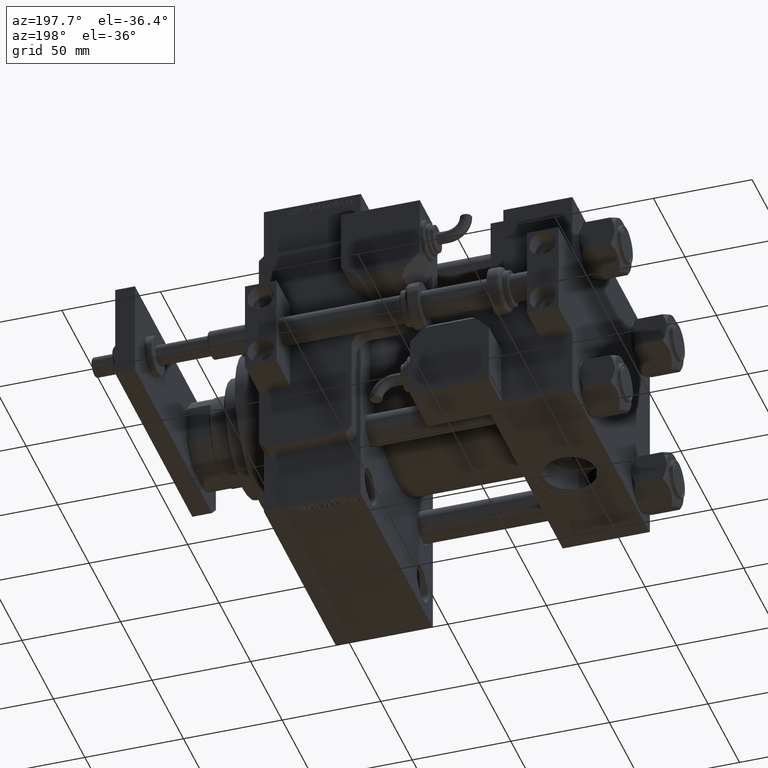
[diagram: clean part render]
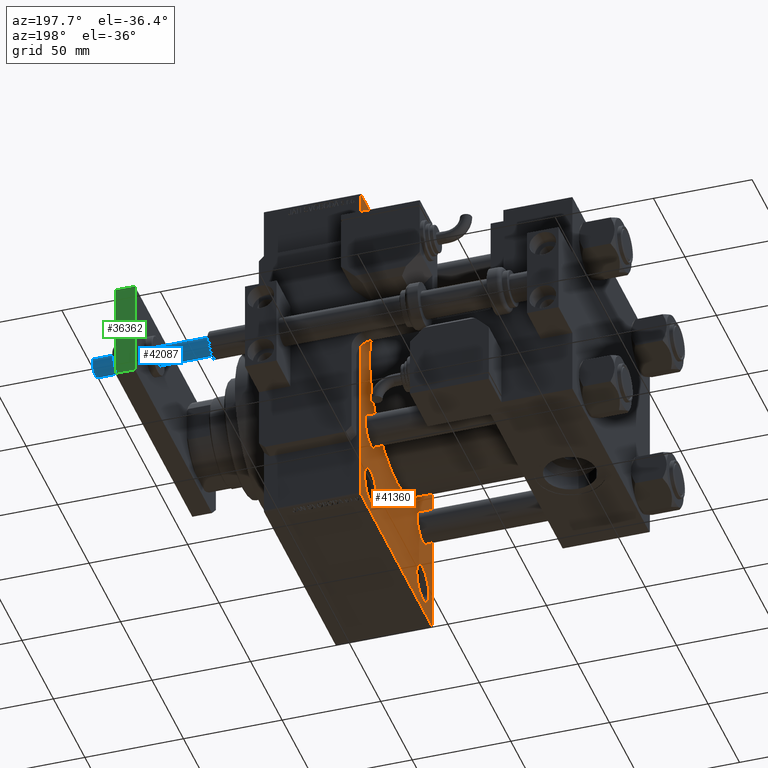
[diagram: same view with three faces highlighted in distinct colors, each labeled with its STEP entity id]
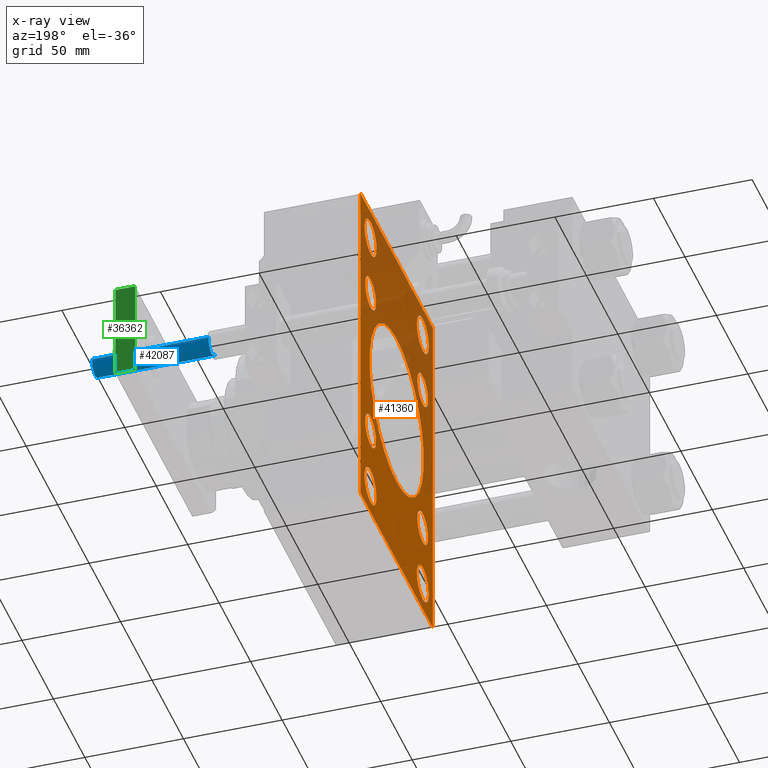
[diagram: x-ray of the same camera — body ghosted, the three highlighted faces saturated]
A machine part, auxiliary view with three faces highlighted in distinct colors.
The next image is the same camera in x-ray (body ghosted, the three faces saturated) — at least one of them is partly hidden behind the body in this view.
Their STEP definitions:

[orange] entity #41360 — the highlighted planar face has unit normal (-1, 0, 0).
#24 = AXIS2_PLACEMENT_3D ( 'NONE', #4604, #52869, #53155 ) ;
#908 = CARTESIAN_POINT ( 'NONE',  ( 110.0000000000000000, -56.99999999999997158, -90.00000000000000000 ) ) ;
#946 = CARTESIAN_POINT ( 'NONE',  ( 110.0000000000000000, -73.49999999999995737, 73.49999999999995737 ) ) ;
#1258 = CARTESIAN_POINT ( 'NONE',  ( 110.0000000000000000, -41.50000000000000711, 64.99999999999997158 ) ) ;
#1518 = CARTESIAN_POINT ( 'NONE',  ( 110.0000000000000000, -41.50000000000000711, -84.00000000000001421 ) ) ;
#1903 = EDGE_LOOP ( 'NONE', ( #10445, #7690 ) ) ;
#2014 = VECTOR ( 'NONE', #44483, 1000.000000000000114 ) ;
#2229 = DIRECTION ( 'NONE',  ( 0.000000000000000000, 0.000000000000000000, 1.000000000000000000 ) ) ;
#2548 = VERTEX_POINT ( 'NONE', #29134 ) ;
#2644 = DIRECTION ( 'NONE',  ( 1.000000000000000000, 0.000000000000000000, 0.000000000000000000 ) ) ;
#2803 = CIRCLE ( 'NONE', #5488, 9.500000000000035527 ) ;
#2909 = CIRCLE ( 'NONE', #16380, 8.500000000000007105 ) ;
#2964 = EDGE_CURVE ( 'NONE', #7854, #15627, #30722, .T. ) ;
#2978 = DIRECTION ( 'NONE',  ( 0.000000000000000000, 0.000000000000000000, 1.000000000000000000 ) ) ;
#3261 = CARTESIAN_POINT ( 'NONE',  ( 110.0000000000000000, -57.50000000000000000, 90.00000000000000000 ) ) ;
#3492 = DIRECTION ( 'NONE',  ( 0.000000000000000000, 0.000000000000000000, 1.000000000000000000 ) ) ;
#3545 = ORIENTED_EDGE ( 'NONE', *, *, #43561, .T. ) ;
#3781 = FACE_BOUND ( 'NONE', #1903, .T. ) ;
#3886 = EDGE_CURVE ( 'NONE', #47465, #49933, #48435, .T. ) ;
#3922 = DIRECTION ( 'NONE',  ( 0.000000000000000000, 0.000000000000000000, 1.000000000000000000 ) ) ;
#4029 = CARTESIAN_POINT ( 'NONE',  ( 110.0000000000000000, -2.602085213965210642E-15, 43.00000000000000000 ) ) ;
#4049 = FACE_OUTER_BOUND ( 'NONE', #35954, .T. ) ;
#4082 = VERTEX_POINT ( 'NONE', #11601 ) ;
#4308 = FACE_BOUND ( 'NONE', #4437, .T. ) ;
#4367 = CARTESIAN_POINT ( 'NONE',  ( 110.0000000000000000, 41.49999999999999289, -84.00000000000001421 ) ) ;
#4401 = CARTESIAN_POINT ( 'NONE',  ( 110.0000000000000000, -41.34999999999998721, -41.35000000000000142 ) ) ;
#4437 = EDGE_LOOP ( 'NONE', ( #37142, #31822 ) ) ;
#4604 = CARTESIAN_POINT ( 'NONE',  ( 110.0000000000000000, -41.34999999999998721, -41.35000000000000142 ) ) ;
#4639 = DIRECTION ( 'NONE',  ( 1.000000000000000000, 0.000000000000000000, 0.000000000000000000 ) ) ;
#4775 = ORIENTED_EDGE ( 'NONE', *, *, #10641, .T. ) ;
#4789 = DIRECTION ( 'NONE',  ( 0.000000000000000000, 0.000000000000000000, 1.000000000000000000 ) ) ;
#5309 = CIRCLE ( 'NONE', #25015, 8.500000000000007105 ) ;
#5385 = DIRECTION ( 'NONE',  ( 0.000000000000000000, 0.000000000000000000, -1.000000000000000000 ) ) ;
#5488 = AXIS2_PLACEMENT_3D ( 'NONE', #8127, #12077, #3922 ) ;
#5554 = CIRCLE ( 'NONE', #46749, 8.500000000000007105 ) ;
#6044 = CARTESIAN_POINT ( 'NONE',  ( 110.0000000000000000, -41.34999999999998721, -32.84999999999999432 ) ) ;
#6108 = VERTEX_POINT ( 'NONE', #27811 ) ;
#6252 = EDGE_CURVE ( 'NONE', #17689, #51902, #2803, .T. ) ;
#6821 = ORIENTED_EDGE ( 'NONE', *, *, #11919, .T. ) ;
#6834 = DIRECTION ( 'NONE',  ( 1.000000000000000000, 0.000000000000000000, 0.000000000000000000 ) ) ;
#7137 = DIRECTION ( 'NONE',  ( 0.000000000000000000, 0.000000000000000000, -1.000000000000000000 ) ) ;
#7234 = EDGE_LOOP ( 'NONE', ( #4775, #16912 ) ) ;
#7322 = EDGE_LOOP ( 'NONE', ( #15139, #6821 ) ) ;
#7380 = DIRECTION ( 'NONE',  ( 0.000000000000000000, -1.000000000000000000, 0.000000000000000000 ) ) ;
#7388 = CIRCLE ( 'NONE', #19941, 8.500000000000007105 ) ;
#7588 = CARTESIAN_POINT ( 'NONE',  ( 110.0000000000000000, -41.50000000000000711, -74.49999999999998579 ) ) ;
#7690 = ORIENTED_EDGE ( 'NONE', *, *, #14749, .T. ) ;
#7715 = CARTESIAN_POINT ( 'NONE',  ( 110.0000000000000000, 41.34999999999999432, 41.34999999999999432 ) ) ;
#7854 = VERTEX_POINT ( 'NONE', #23266 ) ;
#7866 = CARTESIAN_POINT ( 'NONE',  ( 110.0000000000000000, -41.50000000000000711, -64.99999999999994316 ) ) ;
#8127 = CARTESIAN_POINT ( 'NONE',  ( 110.0000000000000000, 41.49999999999999289, -74.49999999999998579 ) ) ;
#8264 = FACE_BOUND ( 'NONE', #7322, .T. ) ;
#8486 = ORIENTED_EDGE ( 'NONE', *, *, #23583, .T. ) ;
#8503 = AXIS2_PLACEMENT_3D ( 'NONE', #44039, #39851, #13180 ) ;
#8583 = ORIENTED_EDGE ( 'NONE', *, *, #20702, .T. ) ;
#9580 = VERTEX_POINT ( 'NONE', #36209 ) ;
#9593 = CARTESIAN_POINT ( 'NONE',  ( 110.0000000000000000, 57.50000000000000000, -89.49999999999988631 ) ) ;
#9612 = CARTESIAN_POINT ( 'NONE',  ( 110.0000000000000000, -41.34999999999998721, 32.84999999999999432 ) ) ;
#9744 = CARTESIAN_POINT ( 'NONE',  ( 110.0000000000000000, 41.34999999999999432, 49.85000000000000853 ) ) ;
#10126 = EDGE_LOOP ( 'NONE', ( #11028, #24789 ) ) ;
#10172 = AXIS2_PLACEMENT_3D ( 'NONE', #33684, #42347, #55266 ) ;
#10272 = CARTESIAN_POINT ( 'NONE',  ( 110.0000000000000000, 73.49999999999995737, -73.49999999999995737 ) ) ;
#10445 = ORIENTED_EDGE ( 'NONE', *, *, #43173, .T. ) ;
#10522 = LINE ( 'NONE', #35536, #21680 ) ;
#10524 = AXIS2_PLACEMENT_3D ( 'NONE', #45146, #23284, #2229 ) ;
#10641 = EDGE_CURVE ( 'NONE', #18291, #13365, #12412, .T. ) ;
#10854 = LINE ( 'NONE', #3261, #25336 ) ;
#10990 = CARTESIAN_POINT ( 'NONE',  ( 110.0000000000000000, 41.49999999999999289, -64.99999999999994316 ) ) ;
#11028 = ORIENTED_EDGE ( 'NONE', *, *, #49807, .T. ) ;
#11134 = DIRECTION ( 'NONE',  ( 1.000000000000000000, 0.000000000000000000, 0.000000000000000000 ) ) ;
#11178 = EDGE_CURVE ( 'NONE', #30285, #51873, #18699, .T. ) ;
#11343 = CARTESIAN_POINT ( 'NONE',  ( 110.0000000000000000, -41.34999999999998721, -49.85000000000001563 ) ) ;
#11432 = ORIENTED_EDGE ( 'NONE', *, *, #17657, .T. ) ;
#11601 = CARTESIAN_POINT ( 'NONE',  ( 110.0000000000000000, 56.99999999999997158, 90.00000000000000000 ) ) ;
#11919 = EDGE_CURVE ( 'NONE', #19429, #48834, #29365, .T. ) ;
#12077 = DIRECTION ( 'NONE',  ( 1.000000000000000000, 0.000000000000000000, 0.000000000000000000 ) ) ;
#12117 = CIRCLE ( 'NONE', #42545, 9.500000000000035527 ) ;
#12193 = AXIS2_PLACEMENT_3D ( 'NONE', #7588, #33420, #25241 ) ;
#12256 = VERTEX_POINT ( 'NONE', #32072 ) ;
#12412 = CIRCLE ( 'NONE', #39295, 8.500000000000007105 ) ;
#12476 = FACE_BOUND ( 'NONE', #44136, .T. ) ;
#12754 = PLANE ( 'NONE',  #42230 ) ;
#13028 = CARTESIAN_POINT ( 'NONE',  ( 110.0000000000000000, 0.000000000000000000, 0.000000000000000000 ) ) ;
#13095 = CARTESIAN_POINT ( 'NONE',  ( 110.0000000000000000, 41.34999999999999432, 32.84999999999998721 ) ) ;
#13180 = DIRECTION ( 'NONE',  ( 0.000000000000000000, 0.000000000000000000, 1.000000000000000000 ) ) ;
#13365 = VERTEX_POINT ( 'NONE', #13095 ) ;
#13954 = DIRECTION ( 'NONE',  ( 1.000000000000000000, 0.000000000000000000, 0.000000000000000000 ) ) ;
#14201 = CARTESIAN_POINT ( 'NONE',  ( 110.0000000000000000, -57.50000000000000000, -89.49999999999991473 ) ) ;
#14703 = DIRECTION ( 'NONE',  ( 0.000000000000000000, 0.000000000000000000, 1.000000000000000000 ) ) ;
#14749 = EDGE_CURVE ( 'NONE', #21348, #2548, #5309, .T. ) ;
#15139 = ORIENTED_EDGE ( 'NONE', *, *, #26587, .T. ) ;
#15341 = DIRECTION ( 'NONE',  ( 0.000000000000000000, 0.000000000000000000, 1.000000000000000000 ) ) ;
#15525 = VERTEX_POINT ( 'NONE', #48806 ) ;
#15627 = VERTEX_POINT ( 'NONE', #37024 ) ;
#16380 = AXIS2_PLACEMENT_3D ( 'NONE', #52614, #42328, #33664 ) ;
#16456 = CARTESIAN_POINT ( 'NONE',  ( 110.0000000000000000, 41.34999999999999432, 41.34999999999999432 ) ) ;
#16912 = ORIENTED_EDGE ( 'NONE', *, *, #26498, .T. ) ;
#17657 = EDGE_CURVE ( 'NONE', #12256, #27954, #52808, .T. ) ;
#17689 = VERTEX_POINT ( 'NONE', #10990 ) ;
#18067 = CARTESIAN_POINT ( 'NONE',  ( 110.0000000000000000, -2.602085213965210642E-15, 0.000000000000000000 ) ) ;
#18083 = VECTOR ( 'NONE', #52018, 1000.000000000000114 ) ;
#18291 = VERTEX_POINT ( 'NONE', #9744 ) ;
#18484 = CIRCLE ( 'NONE', #12193, 9.500000000000035527 ) ;
#18699 = CIRCLE ( 'NONE', #10524, 9.500000000000035527 ) ;
#18899 = VECTOR ( 'NONE', #5385, 1000.000000000000000 ) ;
#18979 = CARTESIAN_POINT ( 'NONE',  ( 110.0000000000000000, 41.49999999999999289, 84.00000000000004263 ) ) ;
#19147 = LINE ( 'NONE', #49157, #48807 ) ;
#19325 = CIRCLE ( 'NONE', #40834, 9.500000000000035527 ) ;
#19429 = VERTEX_POINT ( 'NONE', #50522 ) ;
#19941 = AXIS2_PLACEMENT_3D ( 'NONE', #47426, #43235, #4789 ) ;
#20702 = EDGE_CURVE ( 'NONE', #49933, #47465, #5554, .T. ) ;
#20906 = FACE_BOUND ( 'NONE', #7234, .T. ) ;
#21007 = AXIS2_PLACEMENT_3D ( 'NONE', #33587, #50114, #2978 ) ;
#21023 = ORIENTED_EDGE ( 'NONE', *, *, #42191, .T. ) ;
#21333 = DIRECTION ( 'NONE',  ( 0.000000000000000000, 0.000000000000000000, 1.000000000000000000 ) ) ;
#21348 = VERTEX_POINT ( 'NONE', #9612 ) ;
#21478 = ORIENTED_EDGE ( 'NONE', *, *, #25685, .T. ) ;
#21563 = EDGE_CURVE ( 'NONE', #15525, #33203, #28921, .T. ) ;
#21680 = VECTOR ( 'NONE', #52623, 1000.000000000000000 ) ;
#21799 = CIRCLE ( 'NONE', #27184, 8.500000000000007105 ) ;
#21838 = EDGE_CURVE ( 'NONE', #33203, #15525, #2909, .T. ) ;
#22168 = DIRECTION ( 'NONE',  ( 1.000000000000000000, 0.000000000000000000, 0.000000000000000000 ) ) ;
#22532 = ORIENTED_EDGE ( 'NONE', *, *, #21563, .T. ) ;
#22533 = EDGE_CURVE ( 'NONE', #7854, #41113, #10854, .T. ) ;
#22847 = LINE ( 'NONE', #26207, #18083 ) ;
#22903 = VERTEX_POINT ( 'NONE', #908 ) ;
#23266 = CARTESIAN_POINT ( 'NONE',  ( 110.0000000000000000, -57.50000000000000000, 89.49999999999994316 ) ) ;
#23284 = DIRECTION ( 'NONE',  ( 1.000000000000000000, 0.000000000000000000, 0.000000000000000000 ) ) ;
#23583 = EDGE_CURVE ( 'NONE', #6108, #22903, #10522, .T. ) ;
#23698 = CIRCLE ( 'NONE', #21007, 9.500000000000035527 ) ;
#24789 = ORIENTED_EDGE ( 'NONE', *, *, #53646, .T. ) ;
#24797 = ORIENTED_EDGE ( 'NONE', *, *, #47549, .T. ) ;
#24823 = DIRECTION ( 'NONE',  ( 1.000000000000000000, 0.000000000000000000, 0.000000000000000000 ) ) ;
#25015 = AXIS2_PLACEMENT_3D ( 'NONE', #45263, #6834, #14703 ) ;
#25241 = DIRECTION ( 'NONE',  ( 0.000000000000000000, 0.000000000000000000, 1.000000000000000000 ) ) ;
#25318 = LINE ( 'NONE', #32938, #52529 ) ;
#25336 = VECTOR ( 'NONE', #30191, 1000.000000000000000 ) ;
#25378 = FACE_BOUND ( 'NONE', #47492, .T. ) ;
#25685 = EDGE_CURVE ( 'NONE', #41919, #9580, #54948, .T. ) ;
#26207 = CARTESIAN_POINT ( 'NONE',  ( 110.0000000000000000, 73.49999999999997158, 73.49999999999997158 ) ) ;
#26498 = EDGE_CURVE ( 'NONE', #13365, #18291, #21799, .T. ) ;
#26587 = EDGE_CURVE ( 'NONE', #48834, #19429, #29001, .T. ) ;
#26602 = ORIENTED_EDGE ( 'NONE', *, *, #3886, .T. ) ;
#27184 = AXIS2_PLACEMENT_3D ( 'NONE', #7715, #24823, #3492 ) ;
#27658 = ORIENTED_EDGE ( 'NONE', *, *, #47170, .T. ) ;
#27811 = CARTESIAN_POINT ( 'NONE',  ( 110.0000000000000000, 56.99999999999994316, -90.00000000000000000 ) ) ;
#27954 = VERTEX_POINT ( 'NONE', #9593 ) ;
#28921 = CIRCLE ( 'NONE', #37900, 8.500000000000007105 ) ;
#29001 = CIRCLE ( 'NONE', #43305, 43.00000000000000000 ) ;
#29110 = DIRECTION ( 'NONE',  ( 0.000000000000000000, 0.000000000000000000, 1.000000000000000000 ) ) ;
#29134 = CARTESIAN_POINT ( 'NONE',  ( 110.0000000000000000, -41.34999999999998721, 49.85000000000001563 ) ) ;
#29330 = FACE_BOUND ( 'NONE', #48908, .T. ) ;
#29365 = CIRCLE ( 'NONE', #43681, 43.00000000000000000 ) ;
#29718 = EDGE_CURVE ( 'NONE', #51873, #30285, #30959, .T. ) ;
#29884 = DIRECTION ( 'NONE',  ( -0.000000000000000000, 0.000000000000000000, 1.000000000000000000 ) ) ;
#30010 = LINE ( 'NONE', #10272, #2014 ) ;
#30094 = ORIENTED_EDGE ( 'NONE', *, *, #2964, .T. ) ;
#30191 = DIRECTION ( 'NONE',  ( 0.000000000000000000, 0.000000000000000000, -1.000000000000000000 ) ) ;
#30285 = VERTEX_POINT ( 'NONE', #1258 ) ;
#30722 = LINE ( 'NONE', #946, #49304 ) ;
#30959 = CIRCLE ( 'NONE', #8503, 9.500000000000035527 ) ;
#31760 = CARTESIAN_POINT ( 'NONE',  ( 110.0000000000000000, 41.49999999999999289, 74.50000000000001421 ) ) ;
#31822 = ORIENTED_EDGE ( 'NONE', *, *, #11178, .T. ) ;
#32072 = CARTESIAN_POINT ( 'NONE',  ( 110.0000000000000000, 57.50000000000000000, 89.49999999999997158 ) ) ;
#32938 = CARTESIAN_POINT ( 'NONE',  ( 110.0000000000000000, 57.50000000000000000, 90.00000000000000000 ) ) ;
#33203 = VERTEX_POINT ( 'NONE', #49850 ) ;
#33346 = DIRECTION ( 'NONE',  ( 0.000000000000000000, 0.000000000000000000, 1.000000000000000000 ) ) ;
#33420 = DIRECTION ( 'NONE',  ( 1.000000000000000000, 0.000000000000000000, 0.000000000000000000 ) ) ;
#33533 = CARTESIAN_POINT ( 'NONE',  ( 110.0000000000000000, -2.602085213965210642E-15, 0.000000000000000000 ) ) ;
#33587 = CARTESIAN_POINT ( 'NONE',  ( 110.0000000000000000, 41.49999999999999289, -74.49999999999998579 ) ) ;
#33664 = DIRECTION ( 'NONE',  ( 0.000000000000000000, 0.000000000000000000, 1.000000000000000000 ) ) ;
#33684 = CARTESIAN_POINT ( 'NONE',  ( 110.0000000000000000, 41.49999999999999289, 74.50000000000001421 ) ) ;
#33873 = CARTESIAN_POINT ( 'NONE',  ( 110.0000000000000000, -41.50000000000000711, -74.49999999999998579 ) ) ;
#35536 = CARTESIAN_POINT ( 'NONE',  ( 110.0000000000000000, 57.50000000000000000, -90.00000000000000000 ) ) ;
#35954 = EDGE_LOOP ( 'NONE', ( #8486, #24797, #44942, #30094, #44142, #21023, #11432, #3545 ) ) ;
#36042 = ORIENTED_EDGE ( 'NONE', *, *, #51419, .T. ) ;
#36209 = CARTESIAN_POINT ( 'NONE',  ( 110.0000000000000000, 41.49999999999999289, 64.99999999999997158 ) ) ;
#36276 = DIRECTION ( 'NONE',  ( 0.000000000000000000, -0.7071067811865474617, 0.7071067811865474617 ) ) ;
#37024 = CARTESIAN_POINT ( 'NONE',  ( 110.0000000000000000, -56.99999999999994316, 90.00000000000000000 ) ) ;
#37142 = ORIENTED_EDGE ( 'NONE', *, *, #29718, .T. ) ;
#37532 = CARTESIAN_POINT ( 'NONE',  ( 110.0000000000000000, -41.50000000000000711, 84.00000000000004263 ) ) ;
#37900 = AXIS2_PLACEMENT_3D ( 'NONE', #51905, #22168, #21333 ) ;
#38394 = ORIENTED_EDGE ( 'NONE', *, *, #21838, .T. ) ;
#38569 = DIRECTION ( 'NONE',  ( -0.000000000000000000, 0.7071067811865474617, 0.7071067811865474617 ) ) ;
#39295 = AXIS2_PLACEMENT_3D ( 'NONE', #16456, #11134, #15341 ) ;
#39785 = DIRECTION ( 'NONE',  ( 0.000000000000000000, 0.000000000000000000, 1.000000000000000000 ) ) ;
#39851 = DIRECTION ( 'NONE',  ( 1.000000000000000000, 0.000000000000000000, 0.000000000000000000 ) ) ;
#40220 = DIRECTION ( 'NONE',  ( 1.000000000000000000, 0.000000000000000000, 0.000000000000000000 ) ) ;
#40834 = AXIS2_PLACEMENT_3D ( 'NONE', #33873, #4639, #29110 ) ;
#41113 = VERTEX_POINT ( 'NONE', #14201 ) ;
#41360 = ADVANCED_FACE ( 'NONE', ( #4308, #55145, #29330, #42222, #3781, #20906, #12476, #25378, #8264, #4049 ), #12754, .T. ) ;
#41749 = DIRECTION ( 'NONE',  ( 1.000000000000000000, 0.000000000000000000, 0.000000000000000000 ) ) ;
#41919 = VERTEX_POINT ( 'NONE', #18979 ) ;
#42191 = EDGE_CURVE ( 'NONE', #4082, #12256, #22847, .T. ) ;
#42222 = FACE_BOUND ( 'NONE', #45727, .T. ) ;
#42230 = AXIS2_PLACEMENT_3D ( 'NONE', #13028, #47233, #29884 ) ;
#42328 = DIRECTION ( 'NONE',  ( 1.000000000000000000, 0.000000000000000000, 0.000000000000000000 ) ) ;
#42347 = DIRECTION ( 'NONE',  ( 1.000000000000000000, 0.000000000000000000, 0.000000000000000000 ) ) ;
#42545 = AXIS2_PLACEMENT_3D ( 'NONE', #31760, #41749, #33346 ) ;
#42792 = VERTEX_POINT ( 'NONE', #7866 ) ;
#43173 = EDGE_CURVE ( 'NONE', #2548, #21348, #7388, .T. ) ;
#43235 = DIRECTION ( 'NONE',  ( 1.000000000000000000, 0.000000000000000000, 0.000000000000000000 ) ) ;
#43305 = AXIS2_PLACEMENT_3D ( 'NONE', #18067, #40220, #51730 ) ;
#43561 = EDGE_CURVE ( 'NONE', #27954, #6108, #30010, .T. ) ;
#43681 = AXIS2_PLACEMENT_3D ( 'NONE', #33533, #2644, #7137 ) ;
#44039 = CARTESIAN_POINT ( 'NONE',  ( 110.0000000000000000, -41.50000000000000711, 74.50000000000001421 ) ) ;
#44136 = EDGE_LOOP ( 'NONE', ( #38394, #22532 ) ) ;
#44142 = ORIENTED_EDGE ( 'NONE', *, *, #53468, .F. ) ;
#44483 = DIRECTION ( 'NONE',  ( -0.000000000000000000, -0.7071067811865474617, -0.7071067811865474617 ) ) ;
#44650 = CARTESIAN_POINT ( 'NONE',  ( 110.0000000000000000, 57.50000000000000000, 90.00000000000000000 ) ) ;
#44942 = ORIENTED_EDGE ( 'NONE', *, *, #22533, .F. ) ;
#45146 = CARTESIAN_POINT ( 'NONE',  ( 110.0000000000000000, -41.50000000000000711, 74.50000000000001421 ) ) ;
#45263 = CARTESIAN_POINT ( 'NONE',  ( 110.0000000000000000, -41.34999999999998721, 41.35000000000000142 ) ) ;
#45727 = EDGE_LOOP ( 'NONE', ( #21478, #36042 ) ) ;
#46404 = VERTEX_POINT ( 'NONE', #1518 ) ;
#46749 = AXIS2_PLACEMENT_3D ( 'NONE', #4401, #13954, #39785 ) ;
#47170 = EDGE_CURVE ( 'NONE', #51902, #17689, #23698, .T. ) ;
#47233 = DIRECTION ( 'NONE',  ( -1.000000000000000000, 0.000000000000000000, -0.000000000000000000 ) ) ;
#47426 = CARTESIAN_POINT ( 'NONE',  ( 110.0000000000000000, -41.34999999999998721, 41.35000000000000142 ) ) ;
#47465 = VERTEX_POINT ( 'NONE', #11343 ) ;
#47492 = EDGE_LOOP ( 'NONE', ( #8583, #26602 ) ) ;
#47549 = EDGE_CURVE ( 'NONE', #22903, #41113, #19147, .T. ) ;
#48435 = CIRCLE ( 'NONE', #24, 8.500000000000007105 ) ;
#48806 = CARTESIAN_POINT ( 'NONE',  ( 110.0000000000000000, 41.34999999999999432, -49.85000000000000853 ) ) ;
#48807 = VECTOR ( 'NONE', #36276, 1000.000000000000114 ) ;
#48834 = VERTEX_POINT ( 'NONE', #4029 ) ;
#48908 = EDGE_LOOP ( 'NONE', ( #53693, #27658 ) ) ;
#49157 = CARTESIAN_POINT ( 'NONE',  ( 110.0000000000000000, -73.49999999999997158, -73.49999999999997158 ) ) ;
#49304 = VECTOR ( 'NONE', #38569, 1000.000000000000114 ) ;
#49807 = EDGE_CURVE ( 'NONE', #42792, #46404, #19325, .T. ) ;
#49850 = CARTESIAN_POINT ( 'NONE',  ( 110.0000000000000000, 41.34999999999999432, -32.84999999999998721 ) ) ;
#49933 = VERTEX_POINT ( 'NONE', #6044 ) ;
#50114 = DIRECTION ( 'NONE',  ( 1.000000000000000000, 0.000000000000000000, 0.000000000000000000 ) ) ;
#50522 = CARTESIAN_POINT ( 'NONE',  ( 110.0000000000000000, 2.663896022368408223E-15, -43.00000000000000000 ) ) ;
#51419 = EDGE_CURVE ( 'NONE', #9580, #41919, #12117, .T. ) ;
#51730 = DIRECTION ( 'NONE',  ( 0.000000000000000000, 0.000000000000000000, -1.000000000000000000 ) ) ;
#51873 = VERTEX_POINT ( 'NONE', #37532 ) ;
#51902 = VERTEX_POINT ( 'NONE', #4367 ) ;
#51905 = CARTESIAN_POINT ( 'NONE',  ( 110.0000000000000000, 41.34999999999999432, -41.34999999999999432 ) ) ;
#52018 = DIRECTION ( 'NONE',  ( 0.000000000000000000, 0.7071067811865474617, -0.7071067811865474617 ) ) ;
#52529 = VECTOR ( 'NONE', #7380, 1000.000000000000000 ) ;
#52614 = CARTESIAN_POINT ( 'NONE',  ( 110.0000000000000000, 41.34999999999999432, -41.34999999999999432 ) ) ;
#52623 = DIRECTION ( 'NONE',  ( 0.000000000000000000, -1.000000000000000000, 0.000000000000000000 ) ) ;
#52808 = LINE ( 'NONE', #44650, #18899 ) ;
#52869 = DIRECTION ( 'NONE',  ( 1.000000000000000000, 0.000000000000000000, 0.000000000000000000 ) ) ;
#53155 = DIRECTION ( 'NONE',  ( 0.000000000000000000, 0.000000000000000000, 1.000000000000000000 ) ) ;
#53468 = EDGE_CURVE ( 'NONE', #4082, #15627, #25318, .T. ) ;
#53646 = EDGE_CURVE ( 'NONE', #46404, #42792, #18484, .T. ) ;
#53693 = ORIENTED_EDGE ( 'NONE', *, *, #6252, .T. ) ;
#54948 = CIRCLE ( 'NONE', #10172, 9.500000000000035527 ) ;
#55145 = FACE_BOUND ( 'NONE', #10126, .T. ) ;
#55266 = DIRECTION ( 'NONE',  ( 0.000000000000000000, 0.000000000000000000, 1.000000000000000000 ) ) ;

[blue] entity #42087 — the highlighted cylindrical surface (edge-blend (fillet) strip) has radius 5 mm, axis along (-1, 0, 0).
#844 = CARTESIAN_POINT ( 'NONE',  ( 5.000000000000000000, 0.000000000000000000, -59.00000000000001421 ) ) ;
#2235 = VERTEX_POINT ( 'NONE', #24700 ) ;
#3595 = DIRECTION ( 'NONE',  ( -0.000000000000000000, -0.000000000000000000, 1.000000000000000000 ) ) ;
#6995 = VECTOR ( 'NONE', #55185, 1000.000000000000000 ) ;
#7815 = LINE ( 'NONE', #42324, #35935 ) ;
#10113 = EDGE_CURVE ( 'NONE', #2235, #48570, #38341, .T. ) ;
#11038 = CIRCLE ( 'NONE', #24456, 5.000000000000000000 ) ;
#11573 = DIRECTION ( 'NONE',  ( 0.000000000000000000, 0.000000000000000000, 1.000000000000000000 ) ) ;
#13907 = CIRCLE ( 'NONE', #49768, 5.000000000000000000 ) ;
#16702 = DIRECTION ( 'NONE',  ( -0.000000000000000000, -0.000000000000000000, 1.000000000000000000 ) ) ;
#21900 = EDGE_LOOP ( 'NONE', ( #32798, #47297, #31397, #32846 ) ) ;
#22539 = DIRECTION ( 'NONE',  ( -1.000000000000000000, 0.000000000000000000, 0.000000000000000000 ) ) ;
#23094 = VERTEX_POINT ( 'NONE', #25556 ) ;
#23645 = CARTESIAN_POINT ( 'NONE',  ( -5.000000000000000000, 6.123233995736766282E-16, 0.000000000000000000 ) ) ;
#24456 = AXIS2_PLACEMENT_3D ( 'NONE', #41045, #11573, #28703 ) ;
#24700 = CARTESIAN_POINT ( 'NONE',  ( -5.000000000000000000, 6.123233995736766282E-16, -59.00000000000001421 ) ) ;
#25556 = CARTESIAN_POINT ( 'NONE',  ( 5.000000000000000000, 0.000000000000000000, 0.000000000000000000 ) ) ;
#28703 = DIRECTION ( 'NONE',  ( -1.000000000000000000, 0.000000000000000000, 0.000000000000000000 ) ) ;
#29614 = CARTESIAN_POINT ( 'NONE',  ( 0.000000000000000000, 0.000000000000000000, -59.50000000000000000 ) ) ;
#31397 = ORIENTED_EDGE ( 'NONE', *, *, #48974, .T. ) ;
#32798 = ORIENTED_EDGE ( 'NONE', *, *, #43772, .T. ) ;
#32846 = ORIENTED_EDGE ( 'NONE', *, *, #36426, .F. ) ;
#35935 = VECTOR ( 'NONE', #3595, 1000.000000000000000 ) ;
#36426 = EDGE_CURVE ( 'NONE', #38490, #23094, #7815, .T. ) ;
#38341 = LINE ( 'NONE', #47280, #6995 ) ;
#38490 = VERTEX_POINT ( 'NONE', #844 ) ;
#41045 = CARTESIAN_POINT ( 'NONE',  ( 0.000000000000000000, 0.000000000000000000, -59.00000000000001421 ) ) ;
#42087 = ADVANCED_FACE ( 'NONE', ( #55153 ), #46698, .T. ) ;
#42324 = CARTESIAN_POINT ( 'NONE',  ( 5.000000000000000000, 0.000000000000000000, -59.50000000000000000 ) ) ;
#43772 = EDGE_CURVE ( 'NONE', #38490, #2235, #11038, .T. ) ;
#44134 = CARTESIAN_POINT ( 'NONE',  ( 0.000000000000000000, 0.000000000000000000, 0.000000000000000000 ) ) ;
#46698 = CYLINDRICAL_SURFACE ( 'NONE', #53055, 5.000000000000000000 ) ;
#47241 = DIRECTION ( 'NONE',  ( 1.000000000000000000, 0.000000000000000000, 0.000000000000000000 ) ) ;
#47280 = CARTESIAN_POINT ( 'NONE',  ( -5.000000000000000000, 6.123233995736766282E-16, -59.50000000000000000 ) ) ;
#47297 = ORIENTED_EDGE ( 'NONE', *, *, #10113, .T. ) ;
#48065 = DIRECTION ( 'NONE',  ( 0.000000000000000000, 0.000000000000000000, -1.000000000000000000 ) ) ;
#48570 = VERTEX_POINT ( 'NONE', #23645 ) ;
#48974 = EDGE_CURVE ( 'NONE', #48570, #23094, #13907, .T. ) ;
#49768 = AXIS2_PLACEMENT_3D ( 'NONE', #44134, #48065, #22539 ) ;
#53055 = AXIS2_PLACEMENT_3D ( 'NONE', #29614, #16702, #47241 ) ;
#55153 = FACE_OUTER_BOUND ( 'NONE', #21900, .T. ) ;
#55185 = DIRECTION ( 'NONE',  ( -0.000000000000000000, -0.000000000000000000, 1.000000000000000000 ) ) ;

[green] entity #36362 — the highlighted planar face has unit normal (0, -1, 0).
#92 = DIRECTION ( 'NONE',  ( -0.000000000000000000, -0.000000000000000000, -1.000000000000000000 ) ) ;
#286 = EDGE_CURVE ( 'NONE', #15584, #49691, #53242, .T. ) ;
#2054 = CARTESIAN_POINT ( 'NONE',  ( -25.00000000000000000, 128.5000000000000000, 10.00000000000000000 ) ) ;
#3320 = DIRECTION ( 'NONE',  ( 0.000000000000000000, -0.000000000000000000, -1.000000000000000000 ) ) ;
#3879 = FACE_OUTER_BOUND ( 'NONE', #32288, .T. ) ;
#4412 = EDGE_CURVE ( 'NONE', #15584, #30982, #47219, .T. ) ;
#4982 = DIRECTION ( 'NONE',  ( -1.000000000000000000, 0.000000000000000000, 0.000000000000000000 ) ) ;
#8848 = CARTESIAN_POINT ( 'NONE',  ( -25.00000000000000000, 128.5000000000000000, 0.000000000000000000 ) ) ;
#10587 = CARTESIAN_POINT ( 'NONE',  ( -25.00000000000000000, 128.5000000000000000, 10.00000000000000000 ) ) ;
#11363 = CARTESIAN_POINT ( 'NONE',  ( 25.00000000000000355, 128.5000000000000000, 0.000000000000000000 ) ) ;
#11478 = VECTOR ( 'NONE', #49810, 1000.000000000000000 ) ;
#11544 = VECTOR ( 'NONE', #4982, 1000.000000000000000 ) ;
#11748 = PLANE ( 'NONE',  #37737 ) ;
#12466 = CARTESIAN_POINT ( 'NONE',  ( 25.00000000000000355, 128.5000000000000000, 10.00000000000000000 ) ) ;
#12579 = VECTOR ( 'NONE', #92, 1000.000000000000000 ) ;
#12847 = EDGE_CURVE ( 'NONE', #30982, #38681, #46401, .T. ) ;
#12854 = DIRECTION ( 'NONE',  ( 0.000000000000000000, -1.000000000000000000, 0.000000000000000000 ) ) ;
#14535 = ORIENTED_EDGE ( 'NONE', *, *, #41479, .F. ) ;
#15584 = VERTEX_POINT ( 'NONE', #27479 ) ;
#18624 = ORIENTED_EDGE ( 'NONE', *, *, #286, .F. ) ;
#20416 = ORIENTED_EDGE ( 'NONE', *, *, #4412, .T. ) ;
#26590 = CARTESIAN_POINT ( 'NONE',  ( 25.00000000000000355, 128.5000000000000000, 10.00000000000000000 ) ) ;
#27479 = CARTESIAN_POINT ( 'NONE',  ( 25.00000000000000355, 128.5000000000000000, 10.00000000000000000 ) ) ;
#29236 = CARTESIAN_POINT ( 'NONE',  ( 25.00000000000000355, 128.5000000000000000, 0.000000000000000000 ) ) ;
#29703 = CARTESIAN_POINT ( 'NONE',  ( 25.00000000000000355, 128.5000000000000000, 10.00000000000000000 ) ) ;
#29707 = VECTOR ( 'NONE', #36040, 1000.000000000000000 ) ;
#30019 = ORIENTED_EDGE ( 'NONE', *, *, #12847, .T. ) ;
#30982 = VERTEX_POINT ( 'NONE', #29236 ) ;
#32288 = EDGE_LOOP ( 'NONE', ( #30019, #14535, #18624, #20416 ) ) ;
#36040 = DIRECTION ( 'NONE',  ( -0.000000000000000000, -0.000000000000000000, -1.000000000000000000 ) ) ;
#36362 = ADVANCED_FACE ( 'NONE', ( #3879 ), #11748, .F. ) ;
#37737 = AXIS2_PLACEMENT_3D ( 'NONE', #29703, #12854, #3320 ) ;
#38681 = VERTEX_POINT ( 'NONE', #8848 ) ;
#40227 = LINE ( 'NONE', #2054, #29707 ) ;
#41479 = EDGE_CURVE ( 'NONE', #49691, #38681, #40227, .T. ) ;
#46401 = LINE ( 'NONE', #11363, #11478 ) ;
#47219 = LINE ( 'NONE', #12466, #12579 ) ;
#49691 = VERTEX_POINT ( 'NONE', #10587 ) ;
#49810 = DIRECTION ( 'NONE',  ( -1.000000000000000000, 0.000000000000000000, 0.000000000000000000 ) ) ;
#53242 = LINE ( 'NONE', #26590, #11544 ) ;